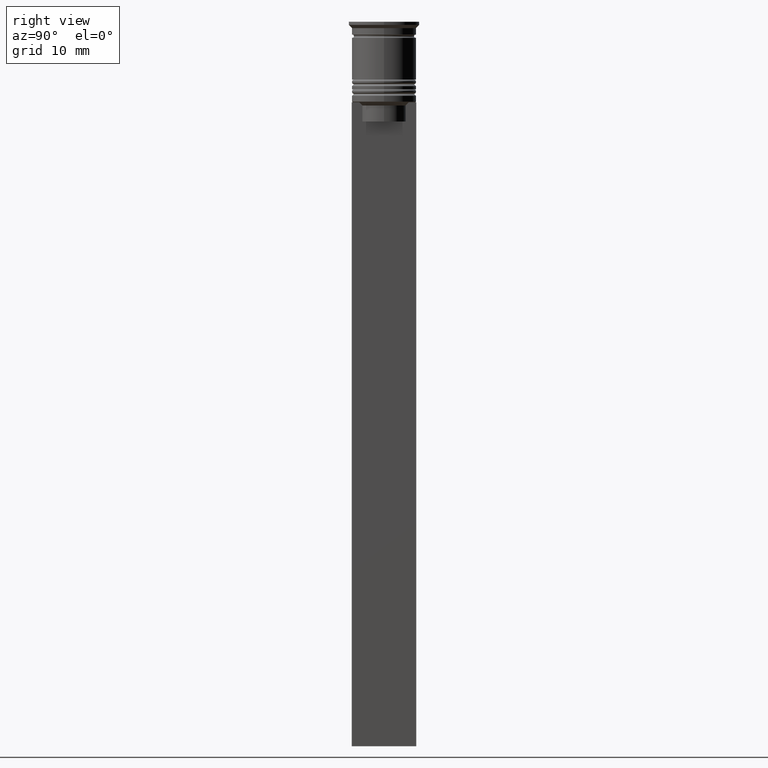
[diagram: clean part render]
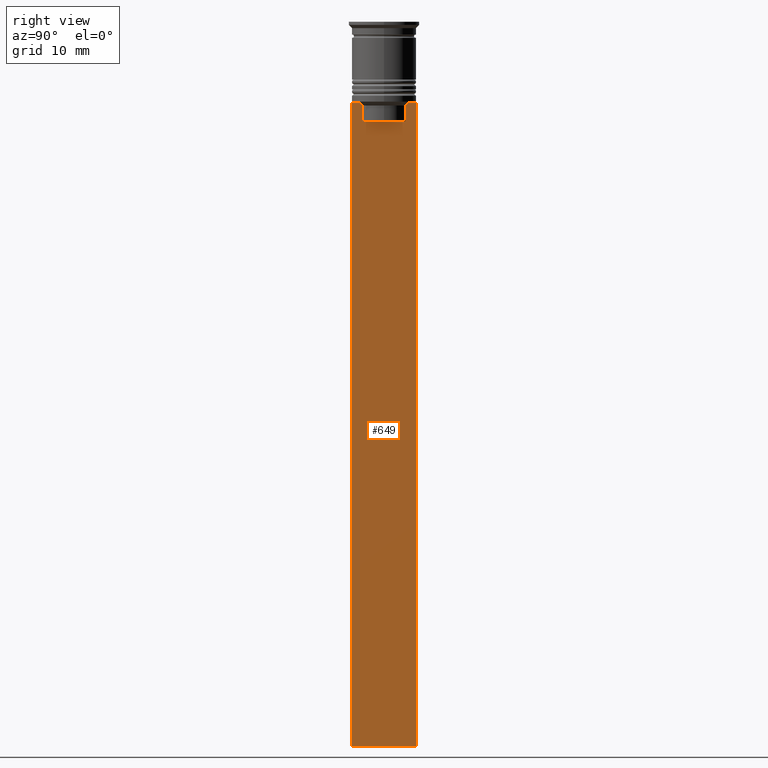
[diagram: same view with one face highlighted and labeled with its STEP entity id]
A machine part, right view. The second image highlights one B-rep face of the part: STEP entity #649.
In plain terms, the highlighted planar face has unit normal (-1, 0, 0).
Its self-contained STEP definition (entity closure, byte-faithful):
#11 = EDGE_CURVE ( 'NONE', #1457, #2253, #2304, .T. ) ;
#21 = DIRECTION ( 'NONE',  ( 0.000000000000000000, 0.000000000000000000, -1.000000000000000000 ) ) ;
#67 = CARTESIAN_POINT ( 'NONE',  ( 0.5000000000000000000, 5.000000000000000888, -112.5000000000000000 ) ) ;
#102 = CARTESIAN_POINT ( 'NONE',  ( 0.5000000000000000000, -4.999999999999999112, -112.5000000000000000 ) ) ;
#106 = DIRECTION ( 'NONE',  ( 0.000000000000000000, 0.000000000000000000, -1.000000000000000000 ) ) ;
#131 = CARTESIAN_POINT ( 'NONE',  ( 0.5000000000000000000, -3.363034344160045652, -15.50000000000000000 ) ) ;
#147 = CARTESIAN_POINT ( 'NONE',  ( 0.5000000000000000000, -3.363034344160045208, -13.00000000000000178 ) ) ;
#181 = CARTESIAN_POINT ( 'NONE',  ( 0.5000000000000000000, -4.999999999999999112, -12.50000000000000000 ) ) ;
#195 = EDGE_CURVE ( 'NONE', #1567, #1767, #235, .T. ) ;
#210 = CARTESIAN_POINT ( 'NONE',  ( 0.5000000000000000000, 3.363034344160045208, -13.00000000000000178 ) ) ;
#219 = DIRECTION ( 'NONE',  ( 0.000000000000000000, 0.000000000000000000, 1.000000000000000000 ) ) ;
#235 = LINE ( 'NONE', #2026, #1139 ) ;
#316 = VERTEX_POINT ( 'NONE', #67 ) ;
#333 = CARTESIAN_POINT ( 'NONE',  ( 0.5000000000000000000, -3.867815921162742754, -12.50000000000000000 ) ) ;
#335 = EDGE_CURVE ( 'NONE', #1554, #930, #1840, .T. ) ;
#358 = CARTESIAN_POINT ( 'NONE',  ( 0.5000000000000000000, -3.699658232838647365, -12.66676999593996555 ) ) ;
#378 = VECTOR ( 'NONE', #859, 1000.000000000000000 ) ;
#401 = ORIENTED_EDGE ( 'NONE', *, *, #1858, .T. ) ;
#491 = DIRECTION ( 'NONE',  ( 0.000000000000000000, 0.000000000000000000, -1.000000000000000000 ) ) ;
#623 = VECTOR ( 'NONE', #2557, 1000.000000000000000 ) ;
#649 = ADVANCED_FACE ( 'NONE', ( #2392 ), #768, .F. ) ;
#665 = VERTEX_POINT ( 'NONE', #1994 ) ;
#768 = PLANE ( 'NONE',  #1764 ) ;
#781 = LINE ( 'NONE', #1585, #1673 ) ;
#792 = LINE ( 'NONE', #181, #1948 ) ;
#803 = ORIENTED_EDGE ( 'NONE', *, *, #1395, .F. ) ;
#811 = LINE ( 'NONE', #2365, #623 ) ;
#813 = EDGE_LOOP ( 'NONE', ( #882, #2248, #2052, #1021, #401, #1992, #2096, #2425, #1563, #1967, #803, #1612 ) ) ;
#823 = CARTESIAN_POINT ( 'NONE',  ( 0.5000000000000000000, 3.699657965831574913, -12.66677026074361301 ) ) ;
#859 = DIRECTION ( 'NONE',  ( 0.000000000000000000, -1.000000000000000000, 0.000000000000000000 ) ) ;
#882 = ORIENTED_EDGE ( 'NONE', *, *, #2521, .T. ) ;
#905 = CARTESIAN_POINT ( 'NONE',  ( 0.5000000000000000000, 5.000000000000000888, -2.450124378879110054 ) ) ;
#930 = VERTEX_POINT ( 'NONE', #1710 ) ;
#981 = CARTESIAN_POINT ( 'NONE',  ( 0.5000000000000000000, 3.867815921162742754, -12.50000000000000000 ) ) ;
#994 = CARTESIAN_POINT ( 'NONE',  ( 0.5000000000000000000, 3.531412678228260216, -12.83345231756357840 ) ) ;
#1008 = DIRECTION ( 'NONE',  ( 0.000000000000000000, -1.000000000000000000, 0.000000000000000000 ) ) ;
#1017 = CARTESIAN_POINT ( 'NONE',  ( 0.5000000000000000000, -3.363034344160045208, 0.000000000000000000 ) ) ;
#1021 = ORIENTED_EDGE ( 'NONE', *, *, #195, .T. ) ;
#1038 = VECTOR ( 'NONE', #2377, 1000.000000000000000 ) ;
#1068 = EDGE_CURVE ( 'NONE', #2289, #1457, #792, .T. ) ;
#1089 = CARTESIAN_POINT ( 'NONE',  ( 0.5000000000000000000, -4.999999999999999112, -2.450124378879110054 ) ) ;
#1139 = VECTOR ( 'NONE', #1008, 1000.000000000000000 ) ;
#1187 = DIRECTION ( 'NONE',  ( 0.000000000000000000, -1.000000000000000000, 0.000000000000000000 ) ) ;
#1228 = CARTESIAN_POINT ( 'NONE',  ( 0.5000000000000000000, -4.999999999999999112, -12.50000000000000000 ) ) ;
#1359 = DIRECTION ( 'NONE',  ( 0.000000000000000000, 1.000000000000000000, 0.000000000000000000 ) ) ;
#1395 = EDGE_CURVE ( 'NONE', #1546, #316, #1564, .T. ) ;
#1431 = LINE ( 'NONE', #2004, #2117 ) ;
#1434 = EDGE_CURVE ( 'NONE', #2253, #316, #2083, .T. ) ;
#1457 = VERTEX_POINT ( 'NONE', #1587 ) ;
#1475 = EDGE_CURVE ( 'NONE', #930, #2289, #811, .T. ) ;
#1482 = VERTEX_POINT ( 'NONE', #1998 ) ;
#1484 = EDGE_CURVE ( 'NONE', #665, #1482, #1899, .T. ) ;
#1546 = VERTEX_POINT ( 'NONE', #1790 ) ;
#1551 = CARTESIAN_POINT ( 'NONE',  ( 0.5000000000000000000, -3.531412985305424801, -12.83345201382502765 ) ) ;
#1554 = VERTEX_POINT ( 'NONE', #1574 ) ;
#1563 = ORIENTED_EDGE ( 'NONE', *, *, #11, .T. ) ;
#1564 = LINE ( 'NONE', #905, #2120 ) ;
#1567 = VERTEX_POINT ( 'NONE', #2065 ) ;
#1574 = CARTESIAN_POINT ( 'NONE',  ( 0.5000000000000000000, -3.363034344160045208, -13.00000000000000178 ) ) ;
#1585 = CARTESIAN_POINT ( 'NONE',  ( 0.5000000000000000000, 3.363034344160045208, 0.000000000000000000 ) ) ;
#1587 = CARTESIAN_POINT ( 'NONE',  ( 0.5000000000000000000, -4.999999999999999112, -12.50000000000000000 ) ) ;
#1612 = ORIENTED_EDGE ( 'NONE', *, *, #2104, .T. ) ;
#1673 = VECTOR ( 'NONE', #21, 1000.000000000000000 ) ;
#1710 = CARTESIAN_POINT ( 'NONE',  ( 0.5000000000000000000, -3.867815921162742754, -12.50000000000000000 ) ) ;
#1761 = DIRECTION ( 'NONE',  ( 0.000000000000000000, -1.000000000000000000, 0.000000000000000000 ) ) ;
#1764 = AXIS2_PLACEMENT_3D ( 'NONE', #2203, #2192, #219 ) ;
#1767 = VERTEX_POINT ( 'NONE', #131 ) ;
#1789 = VERTEX_POINT ( 'NONE', #1933 ) ;
#1790 = CARTESIAN_POINT ( 'NONE',  ( 0.5000000000000000000, 5.000000000000000888, -12.50000000000000000 ) ) ;
#1840 = B_SPLINE_CURVE_WITH_KNOTS ( 'NONE', 3,
 ( #147, #1551, #358, #333 ),
 .UNSPECIFIED., .F., .F.,
 ( 4, 4 ),
 ( 0.01632394437298965648, 0.01703543518243618576 ),
 .UNSPECIFIED. ) ;
#1858 = EDGE_CURVE ( 'NONE', #1767, #1554, #2567, .T. ) ;
#1883 = EDGE_CURVE ( 'NONE', #1482, #1567, #781, .T. ) ;
#1899 = B_SPLINE_CURVE_WITH_KNOTS ( 'NONE', 3,
 ( #981, #823, #994, #210 ),
 .UNSPECIFIED., .F., .F.,
 ( 4, 4 ),
 ( 0.006644825462451552783, 0.007355321358912435097 ),
 .UNSPECIFIED. ) ;
#1933 = CARTESIAN_POINT ( 'NONE',  ( 0.5000000000000000000, 4.874423042781575788, -12.50000000000000000 ) ) ;
#1948 = VECTOR ( 'NONE', #1761, 1000.000000000000000 ) ;
#1967 = ORIENTED_EDGE ( 'NONE', *, *, #1434, .T. ) ;
#1992 = ORIENTED_EDGE ( 'NONE', *, *, #335, .T. ) ;
#1994 = CARTESIAN_POINT ( 'NONE',  ( 0.5000000000000000000, 3.867815921162742754, -12.50000000000000000 ) ) ;
#1998 = CARTESIAN_POINT ( 'NONE',  ( 0.5000000000000000000, 3.363034344160045208, -13.00000000000000178 ) ) ;
#2004 = CARTESIAN_POINT ( 'NONE',  ( 0.5000000000000000000, -4.999999999999999112, -12.50000000000000000 ) ) ;
#2026 = CARTESIAN_POINT ( 'NONE',  ( 0.5000000000000000000, 3.399999999999998135, -15.50000000000000000 ) ) ;
#2052 = ORIENTED_EDGE ( 'NONE', *, *, #1883, .T. ) ;
#2065 = CARTESIAN_POINT ( 'NONE',  ( 0.5000000000000000000, 3.363034344160045652, -15.50000000000000000 ) ) ;
#2083 = LINE ( 'NONE', #2097, #2165 ) ;
#2096 = ORIENTED_EDGE ( 'NONE', *, *, #1475, .T. ) ;
#2097 = CARTESIAN_POINT ( 'NONE',  ( 0.5000000000000000000, -4.999999999999999112, -112.5000000000000000 ) ) ;
#2104 = EDGE_CURVE ( 'NONE', #1546, #1789, #2467, .T. ) ;
#2117 = VECTOR ( 'NONE', #1187, 1000.000000000000000 ) ;
#2120 = VECTOR ( 'NONE', #491, 1000.000000000000000 ) ;
#2165 = VECTOR ( 'NONE', #1359, 1000.000000000000000 ) ;
#2192 = DIRECTION ( 'NONE',  ( -1.000000000000000000, 0.000000000000000000, 0.000000000000000000 ) ) ;
#2203 = CARTESIAN_POINT ( 'NONE',  ( 0.5000000000000000000, -4.999999999999999112, -2.450124378879110054 ) ) ;
#2232 = CARTESIAN_POINT ( 'NONE',  ( 0.5000000000000000000, -4.874423042781575788, -12.50000000000000000 ) ) ;
#2248 = ORIENTED_EDGE ( 'NONE', *, *, #1484, .T. ) ;
#2253 = VERTEX_POINT ( 'NONE', #102 ) ;
#2289 = VERTEX_POINT ( 'NONE', #2232 ) ;
#2304 = LINE ( 'NONE', #1089, #2509 ) ;
#2365 = CARTESIAN_POINT ( 'NONE',  ( 0.5000000000000000000, -4.999999999999999112, -12.50000000000000000 ) ) ;
#2377 = DIRECTION ( 'NONE',  ( -0.000000000000000000, -0.000000000000000000, 1.000000000000000000 ) ) ;
#2392 = FACE_OUTER_BOUND ( 'NONE', #813, .T. ) ;
#2425 = ORIENTED_EDGE ( 'NONE', *, *, #1068, .T. ) ;
#2467 = LINE ( 'NONE', #1228, #378 ) ;
#2509 = VECTOR ( 'NONE', #106, 1000.000000000000000 ) ;
#2521 = EDGE_CURVE ( 'NONE', #1789, #665, #1431, .T. ) ;
#2557 = DIRECTION ( 'NONE',  ( 0.000000000000000000, -1.000000000000000000, 0.000000000000000000 ) ) ;
#2567 = LINE ( 'NONE', #1017, #1038 ) ;